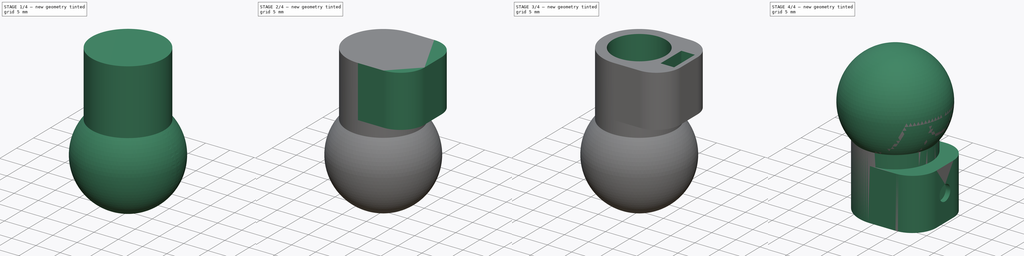
[diagram: build sequence overview — one tinted view per stage of 4, left to right]
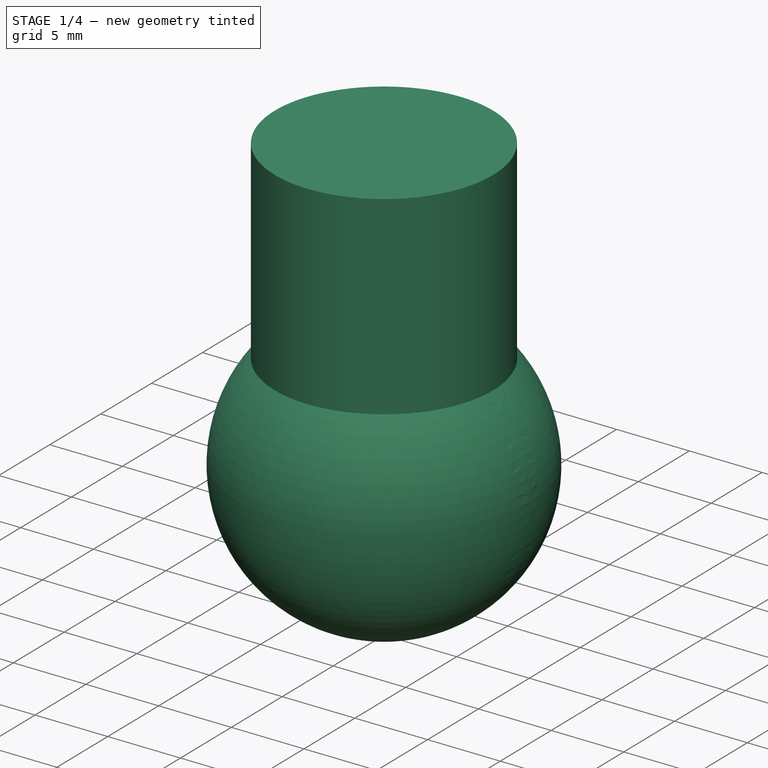
[diagram: stage 1 of 4 — iso view after this stage's code; geometry added in this stage tinted green]
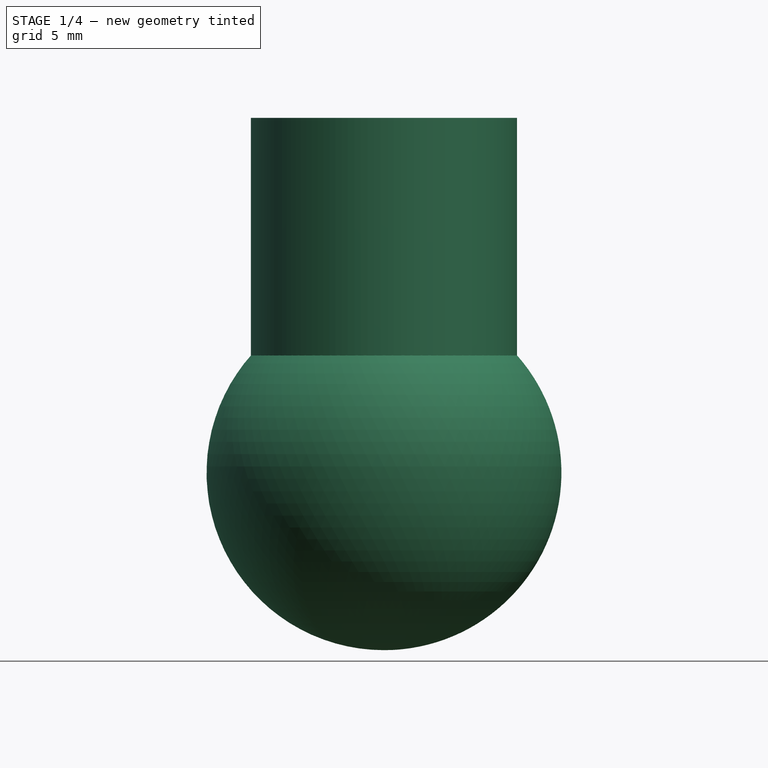
[diagram: stage 1 of 4 — front view after this stage's code; geometry added in this stage tinted green]
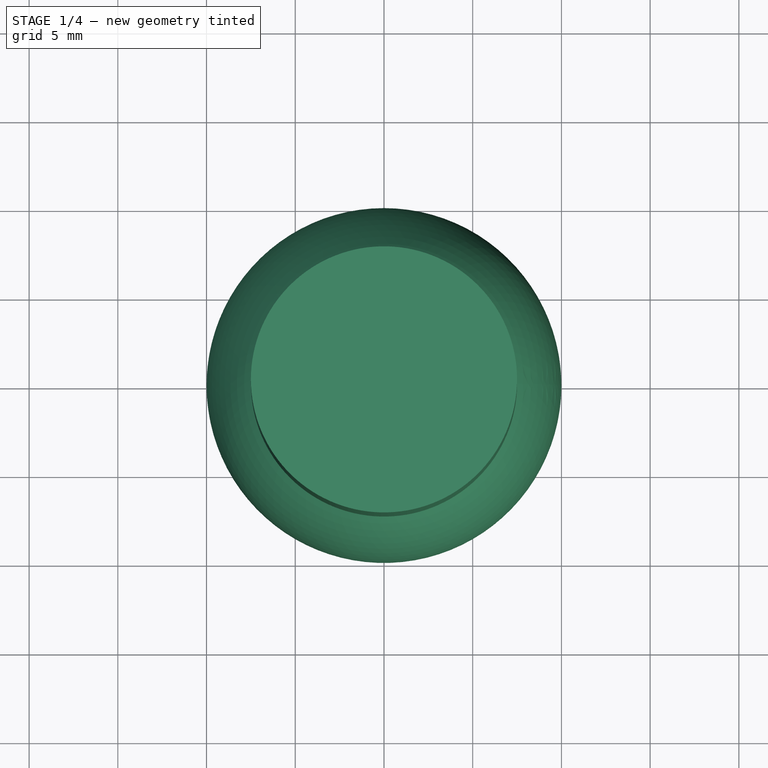
[diagram: stage 1 of 4 — top view after this stage's code; geometry added in this stage tinted green]
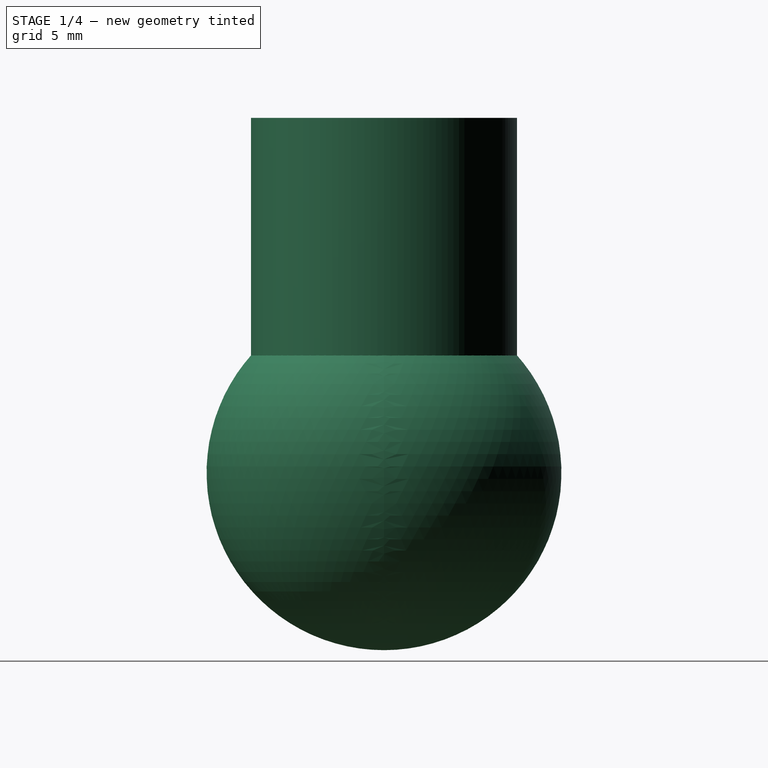
[diagram: stage 1 of 4 — right view after this stage's code; geometry added in this stage tinted green]
FCSTD DOCUMENT  (FreeCAD 0.16R6703 (Git))
Label: strutcap
License: All rights reserved
LicenseURL: http://en.wikipedia.org/wiki/All_rights_reserved
objects: Sketcher::SketchObject×4, PartDesign::Pad×2, Part::MultiFuse×2, PartDesign::Pocket×2, Spreadsheet::Sheet×1, Part::Sphere×1, Part::Cylinder×1, Part::Cut×1, App::DocumentObjectGroup×1, Part::FeaturePython×1
note: 18 computed .brp shape members not serialized (recipe doc carries the construction recipe); baked Part::Feature solids carry a one-line shape summary decoded from their .brp

FEATURE [Part::Sphere] Sphere  label="Head"
  Angle1 = -90
  Angle2 = 90
  Angle3 = 360
  Radius = 10
  expr: Radius = Parameters.sc_diam / 2
FEATURE [Part::Cylinder] Cylinder  label="neck"
  Angle = 360
  Height = 20
  Radius = 7.5
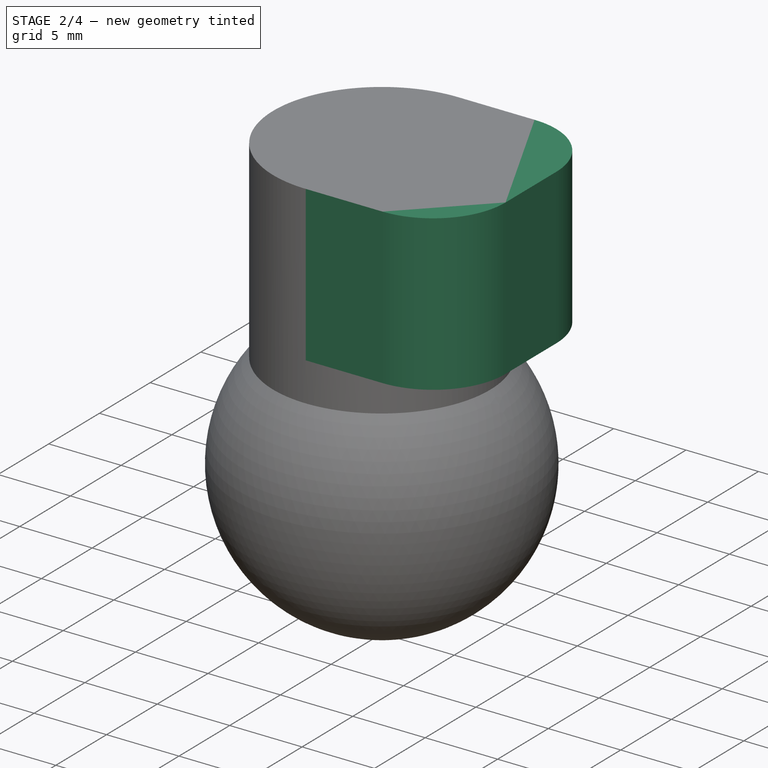
[diagram: stage 2 of 4 — iso view after this stage's code; geometry added in this stage tinted green]
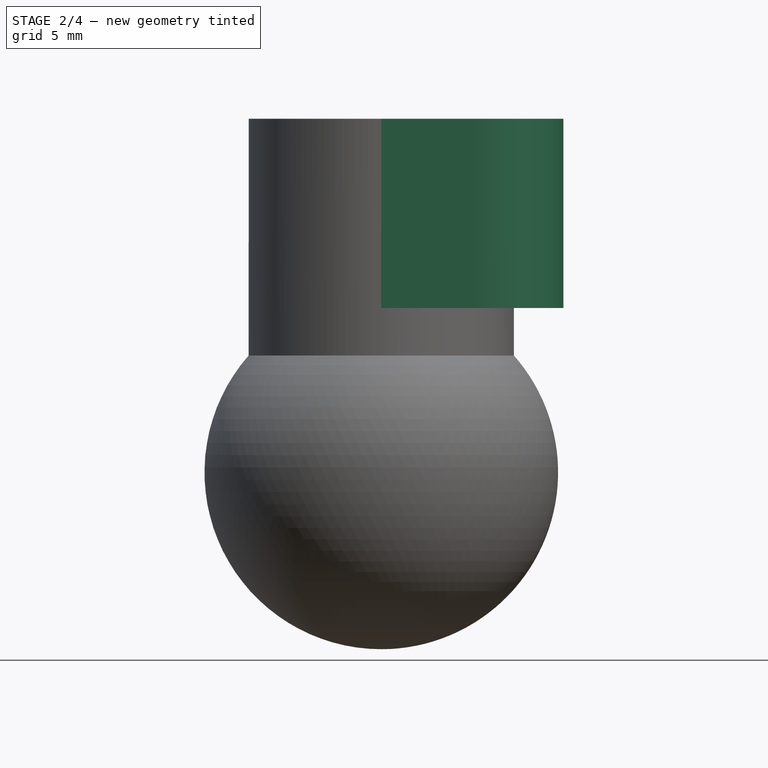
[diagram: stage 2 of 4 — front view after this stage's code; geometry added in this stage tinted green]
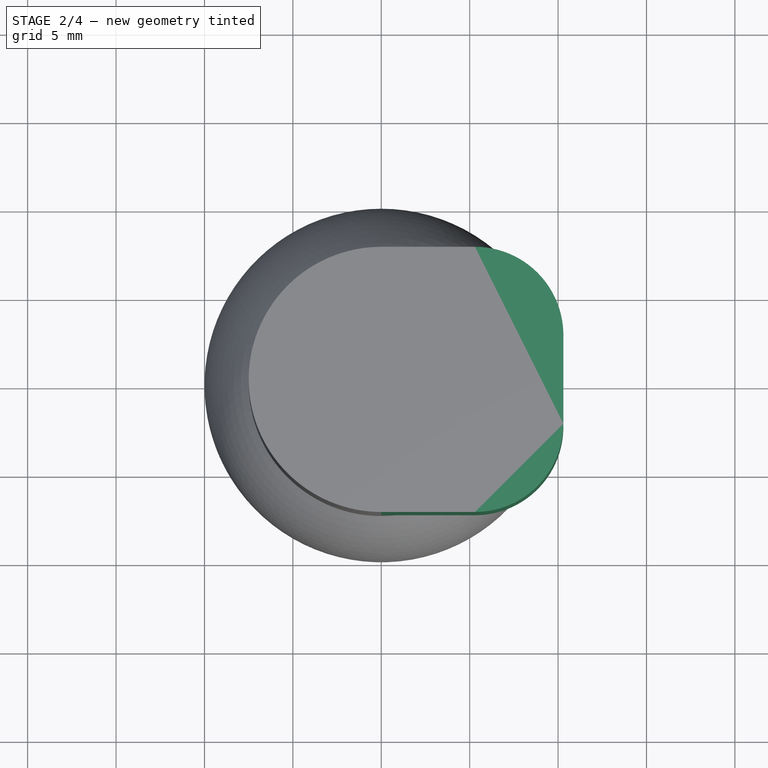
[diagram: stage 2 of 4 — top view after this stage's code; geometry added in this stage tinted green]
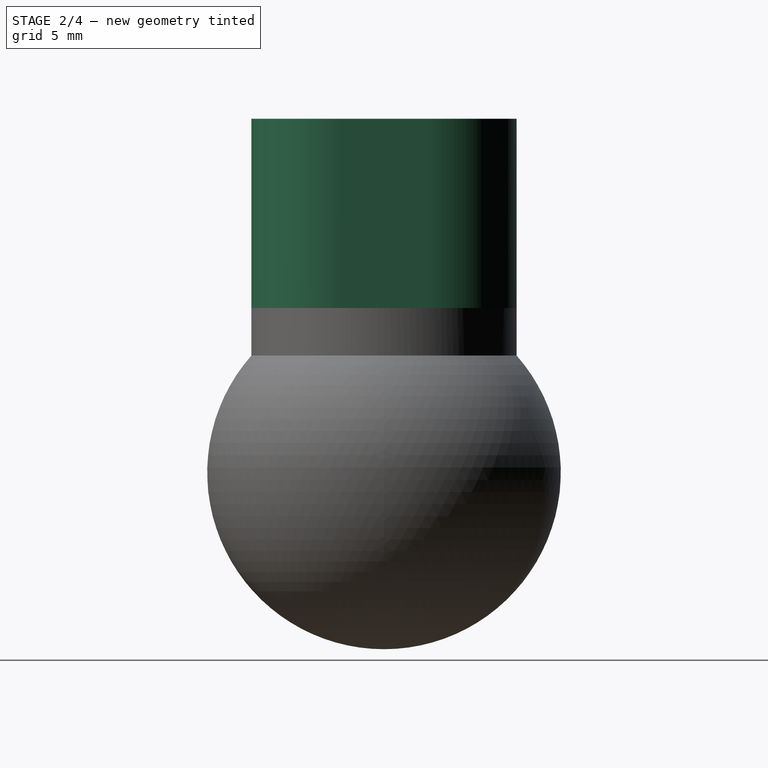
[diagram: stage 2 of 4 — right view after this stage's code; geometry added in this stage tinted green]
FEATURE [Spreadsheet::Sheet] Spreadsheet  label="Parameters"
  cells = B3=sc_diam; C3(sc_diam)=20; D3=Strutcap diameter; E3=Diámetro de los tetones de enganche
FEATURE [Sketcher::SketchObject] Sketch  label="Base-sketch"
  Placement = pos=(0,0,20) rot=(0,0,1;0rad)
  sketch-geometry (6):
    g0: ArcOfCircle CenterX=0 CenterY=0 CenterZ=0 NormalX=0 NormalY=0 NormalZ=1 Radius=7.5 StartAngle=1.5708 EndAngle=4.71239
    g1: LineSegment StartX=0 StartY=7.5 StartZ=0 EndX=5.3 EndY=7.5 EndZ=0
    g2: LineSegment StartX=10.3 StartY=2.5 StartZ=0 EndX=10.3 EndY=-2.5 EndZ=0
    g3: LineSegment StartX=5.3 StartY=-7.5 StartZ=0 EndX=0 EndY=-7.5 EndZ=0
    g4: ArcOfCircle CenterX=5.3 CenterY=2.5 CenterZ=0 NormalX=0 NormalY=0 NormalZ=1 Radius=5 StartAngle=0 EndAngle=1.5708
    g5: ArcOfCircle CenterX=5.3 CenterY=-2.5 CenterZ=0 NormalX=0 NormalY=0 NormalZ=1 Radius=5 StartAngle=4.71239 EndAngle=6.28319
  constraints (16):
    c: PointOnObject(g0,g-2)
    c: Coincident(g0,g-1)
    c: PointOnObject(g0,g-2)
    c: DistanceY(g0,g0) = 15
    c: Coincident(g1,g0)
    c: Horizontal(g1)
    c: Vertical(g2)
    c: Coincident(g3,g0)
    c: Horizontal(g3)
    c: Tangent(g1,g4) = 1.5708
    c: Tangent(g2,g4) = 1.5708
    c: Tangent(g2,g5) = 1.5708
    c: Tangent(g3,g5) = 1.5708
    c: Equal(g4,g5)
    c: Radius(g4) = 5
    c: DistanceX(g0,g2) = 10.3
FEATURE [PartDesign::Pad] Pad  label="Base"
  Length = 10.7
  Length2 = 100
  Placement = pos=(0,0,20) rot=(0,0,1;0rad)
  Reversed = true
  Sketch = -> Sketch
  Type = 0
FEATURE [Part::MultiFuse] Fusion  label="head_neck"
  Shapes = -> [Sphere,Cylinder]
FEATURE [Part::MultiFuse] Fusion001  label="strutcap-base"
  Shapes = -> [Fusion,Pad]
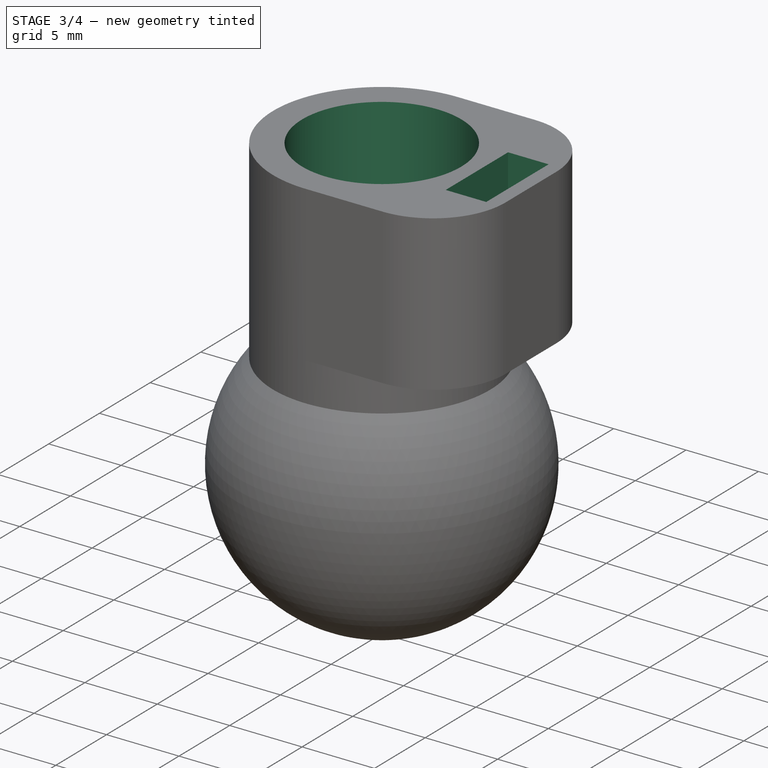
[diagram: stage 3 of 4 — iso view after this stage's code; geometry added in this stage tinted green]
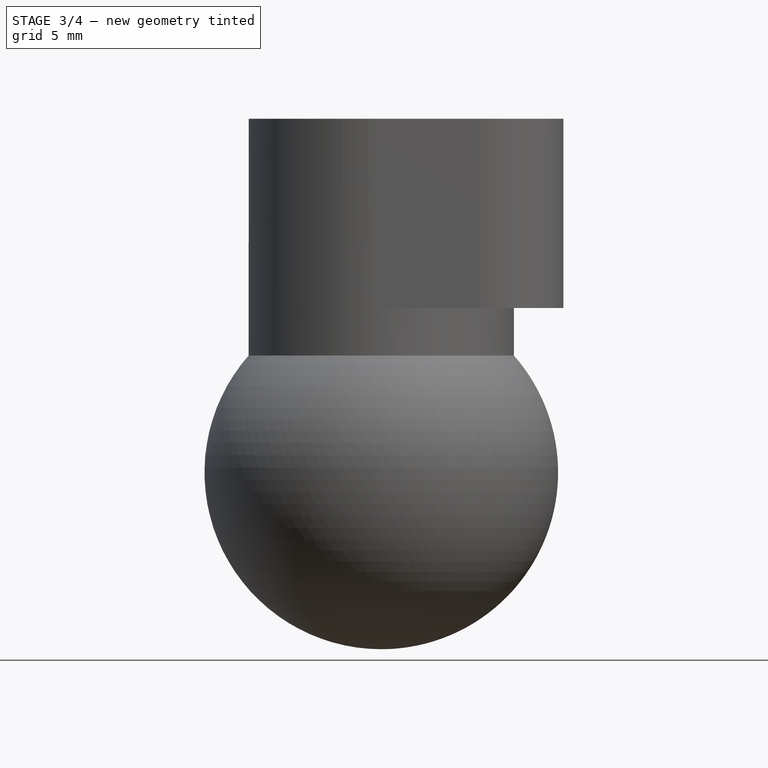
[diagram: stage 3 of 4 — front view after this stage's code; geometry added in this stage tinted green]
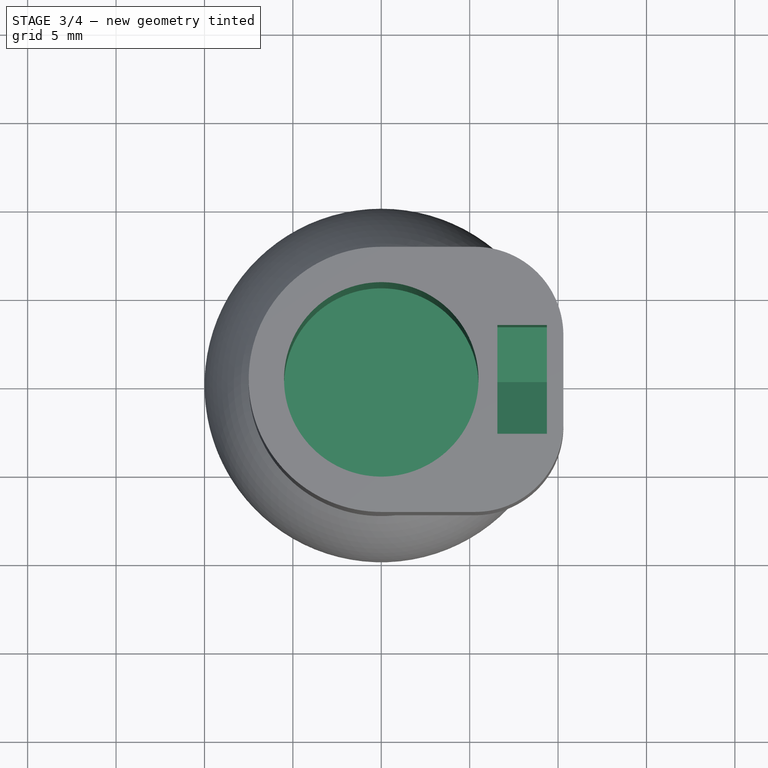
[diagram: stage 3 of 4 — top view after this stage's code; geometry added in this stage tinted green]
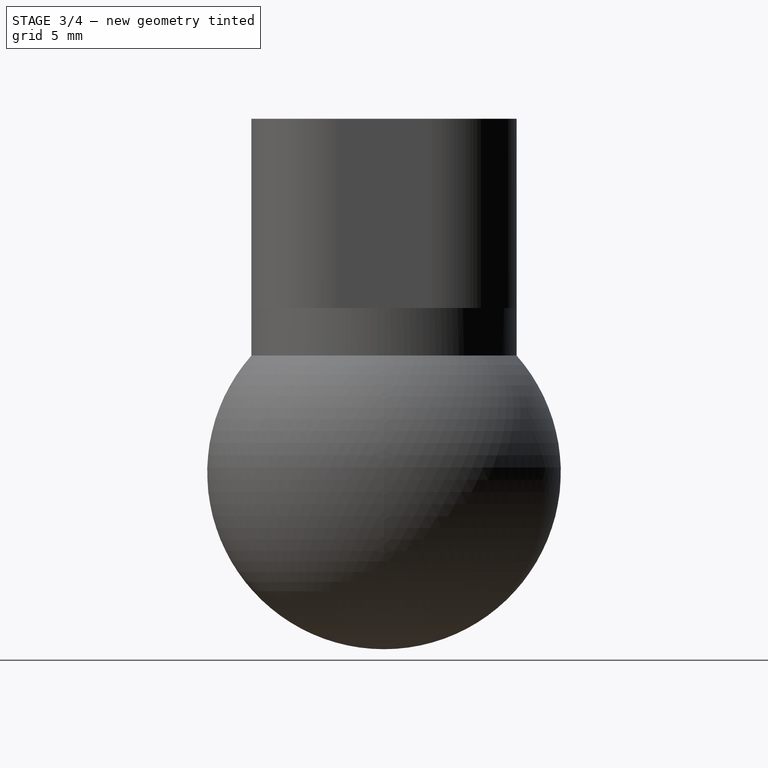
[diagram: stage 3 of 4 — right view after this stage's code; geometry added in this stage tinted green]
FEATURE [Sketcher::SketchObject] Sketch001  label="nut-positive-sketch"
  Placement = pos=(6.56667,0.000609817,0) rot=(0.57735,0.57735,0.57735;2.0944rad)
  sketch-geometry (6):
    g0: LineSegment StartX=-3.075 StartY=34.675 StartZ=0 EndX=3.075 EndY=34.675 EndZ=0
    g1: LineSegment StartX=3.075 StartY=34.675 StartZ=0 EndX=3.075 EndY=12.675 EndZ=0
    g2: LineSegment StartX=-3.075 StartY=12.675 StartZ=0 EndX=-3.075 EndY=34.675 EndZ=0
    g3: LineSegment StartX=3.075 StartY=12.675 StartZ=0 EndX=0 EndY=10.8996 EndZ=0
    g4: LineSegment StartX=0 StartY=10.8996 StartZ=0 EndX=-3.075 EndY=12.675 EndZ=0
    g5: LineSegment [constr] StartX=-3.075 StartY=12.675 StartZ=0 EndX=3.075 EndY=12.675 EndZ=0
  constraints (17):
    c: Coincident(g0,g1)
    c: Coincident(g2,g0)
    c: Horizontal(g0)
    c: Vertical(g1)
    c: Vertical(g2)
    c: Coincident(g1,g3)
    c: PointOnObject(g3,g-2)
    c: Coincident(g3,g4)
    c: Coincident(g4,g2)
    c: Symmetric(g0,g0,g-2)
    c: Coincident(g5,g2)
    c: Coincident(g5,g1)
    c: Horizontal(g5)
    c: Angle(g5,g3) = 0.523599
    c: DistanceX(g0,g0) = 6.15
    c: DistanceY(g1,g1) = 22
    c: DistanceY(g-1,g1) = 12.675
FEATURE [PartDesign::Pad] Pad001  label="nut-positive"
  Length = 2.8
  Length2 = 100
  Placement = pos=(6.56667,0.000609817,0) rot=(0.57735,0.57735,0.57735;2.0944rad)
  Sketch = -> Sketch001
  Type = 0
FEATURE [Part::Cut] Cut  label="strutcap-nut-cutout"
  Base = -> Fusion001
  Tool = -> Pad001
FEATURE [Sketcher::SketchObject] Sketch003  label="bar-hole-sketch"
  Placement = pos=(0,0,20) rot=(0,0,1;0rad)
  Support = -> Cut [Face5]
  sketch-geometry (1):
    g0: Circle CenterX=0 CenterY=0 CenterZ=0 NormalX=0 NormalY=0 NormalZ=1 Radius=5.5
  constraints (2):
    c: Coincident(g0,g-1)
    c: Radius(g0) = 5.5
FEATURE [PartDesign::Pocket] Pocket  label="strutcap-2"
  Length = 20
  Sketch = -> Sketch003
  Type = 0
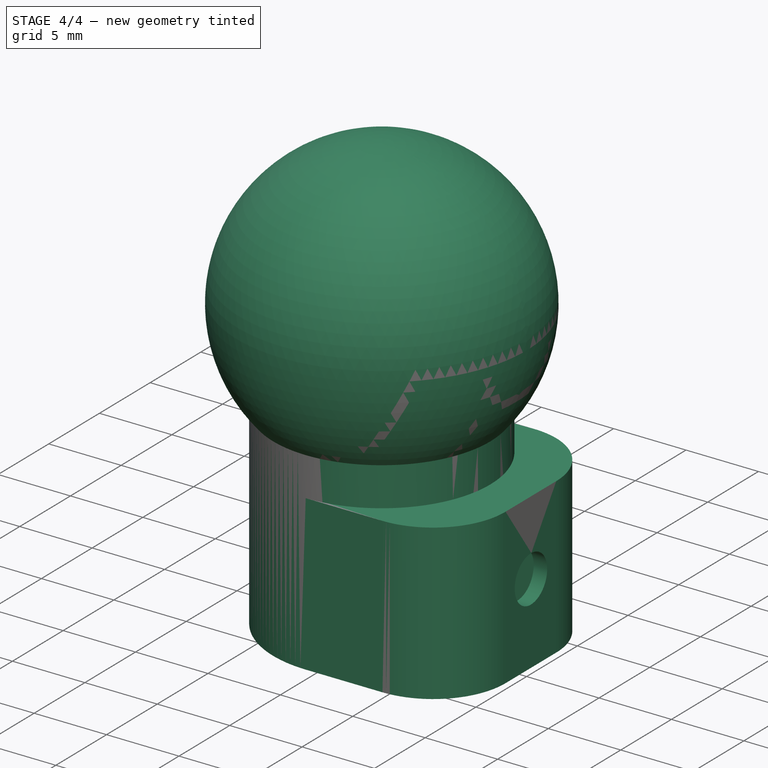
[diagram: stage 4 of 4 — iso view after this stage's code; geometry added in this stage tinted green]
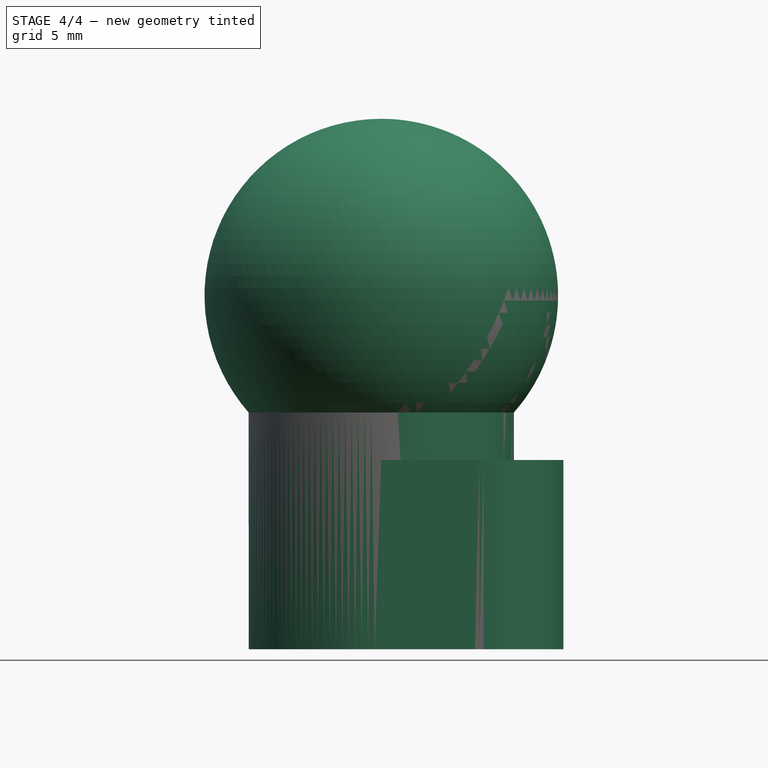
[diagram: stage 4 of 4 — front view after this stage's code; geometry added in this stage tinted green]
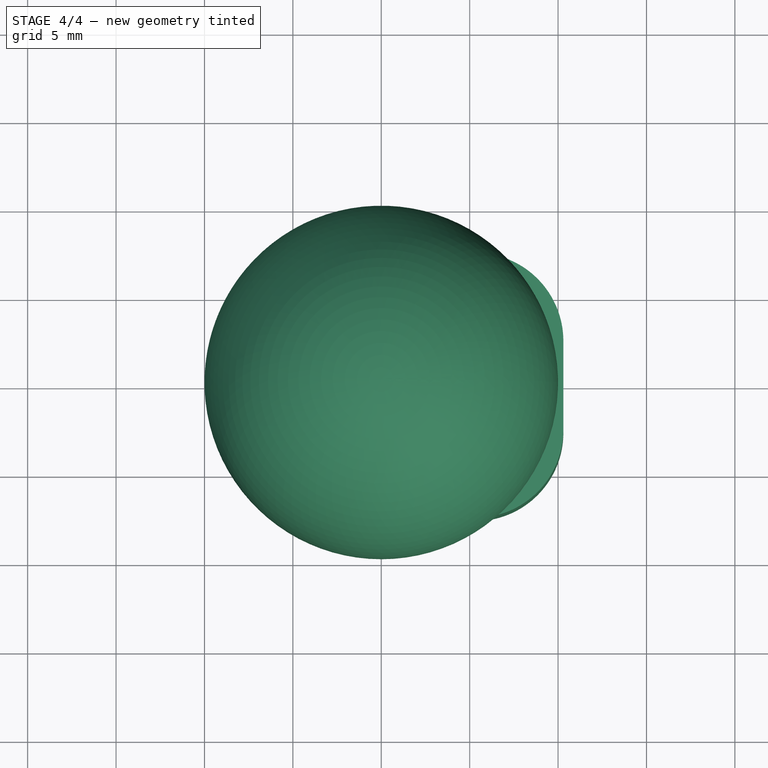
[diagram: stage 4 of 4 — top view after this stage's code; geometry added in this stage tinted green]
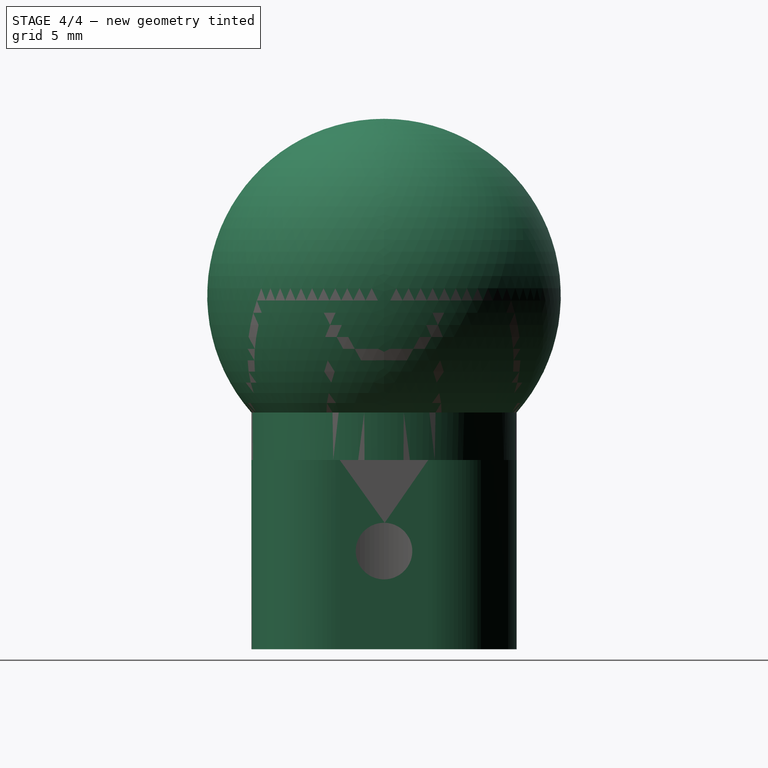
[diagram: stage 4 of 4 — right view after this stage's code; geometry added in this stage tinted green]
FEATURE [Sketcher::SketchObject] Sketch004  label="M3-drill-sketch"
  Placement = pos=(10.3,0,0) rot=(0.57735,0.57735,0.57735;2.0944rad)
  Support = -> Pocket [Face9]
  sketch-geometry (1):
    g0: Circle CenterX=0 CenterY=14.45 CenterZ=0 NormalX=0 NormalY=0 NormalZ=1 Radius=1.6
  constraints (3):
    c: PointOnObject(g0,g-2)
    c: DistanceY(g-1,g0) = 14.45
    c: Radius(g0) = 1.6
FEATURE [PartDesign::Pocket] Pocket001  label="strutcap-3"
  Length = 10
  Sketch = -> Sketch004
  Type = 0
FEATURE [App::DocumentObjectGroup] Group  label="src"
  Group = -> [Cut,Pocket,Pocket001]
FEATURE [Part::FeaturePython] Clone  label="strutcap"  # Draft clone (typed FeaturePython)
  Objects = -> [Pocket001]
  Placement = pos=(0,0,20) rot=(1,0,0;3.14159rad)
  Scale = (1,1,1)
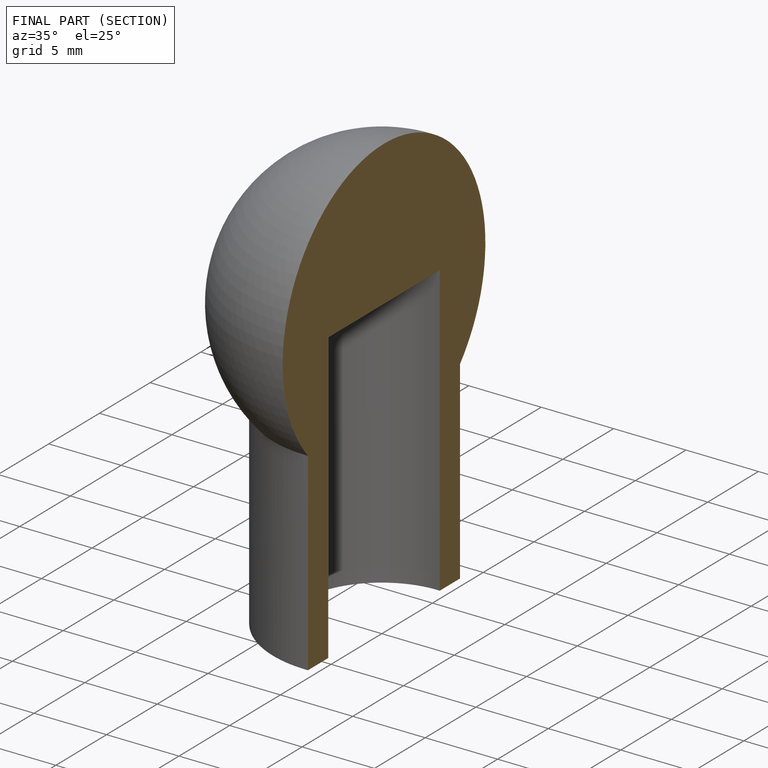
[diagram: finished part — half-section view (interior)]
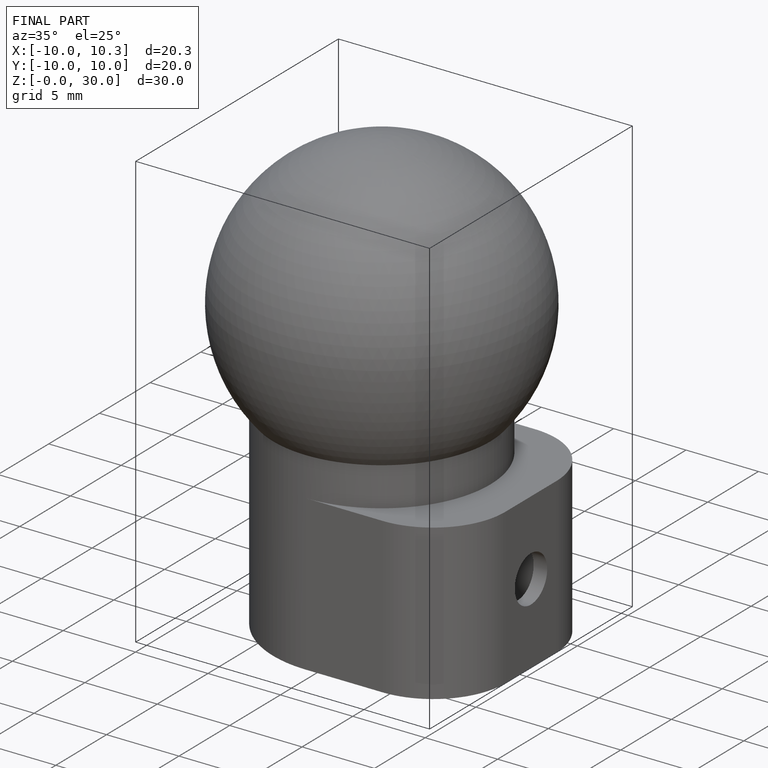
[diagram: finished part — iso view with bounding-box wireframe]
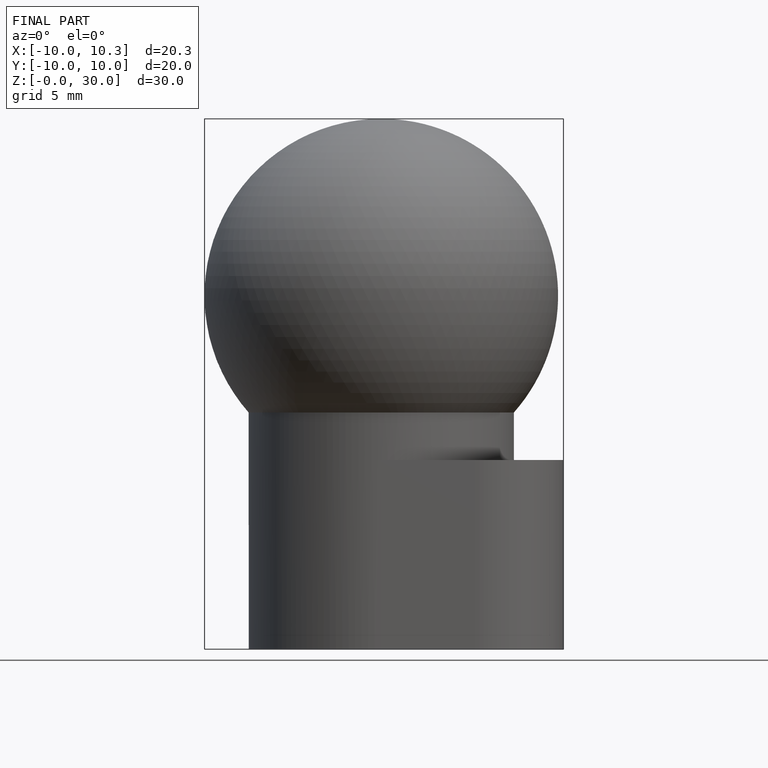
[diagram: finished part — front view with bounding-box wireframe]
